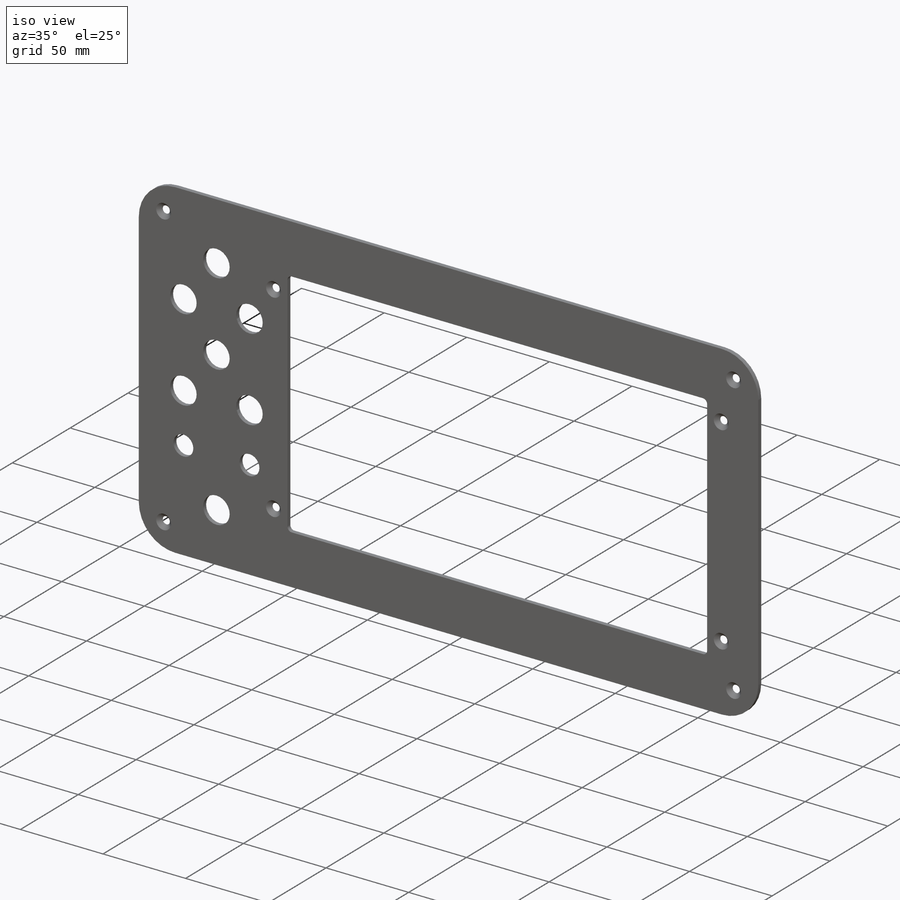
[diagram: iso view]
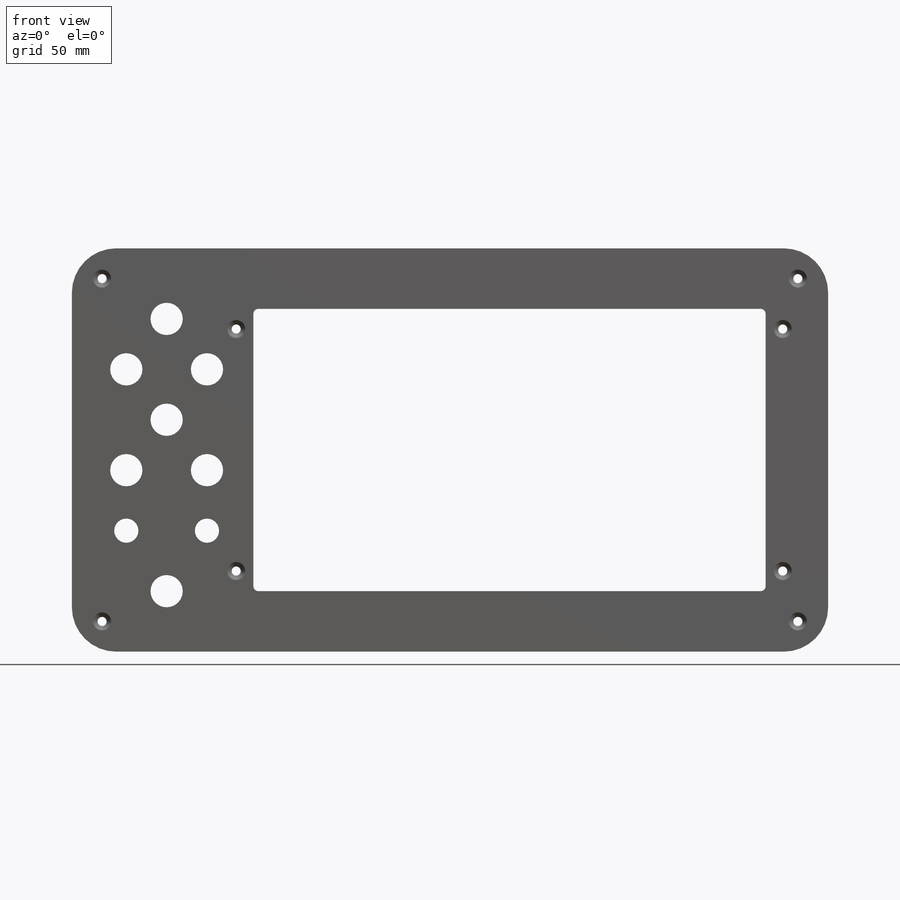
[diagram: front view]
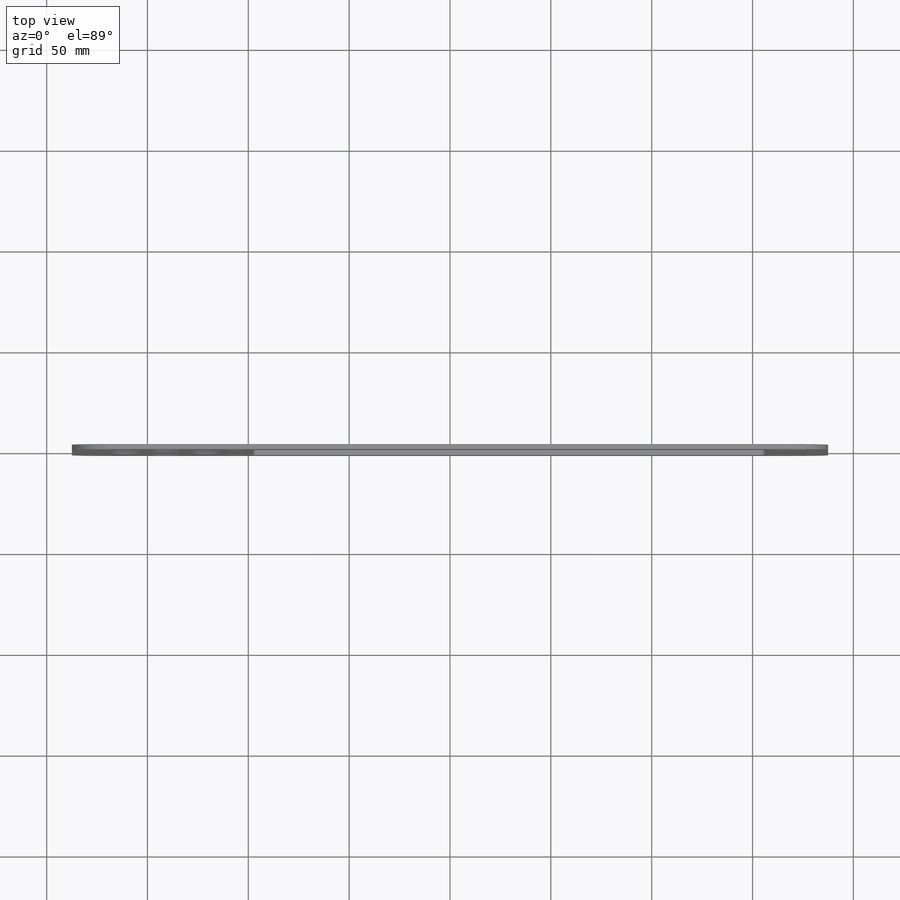
[diagram: top view]
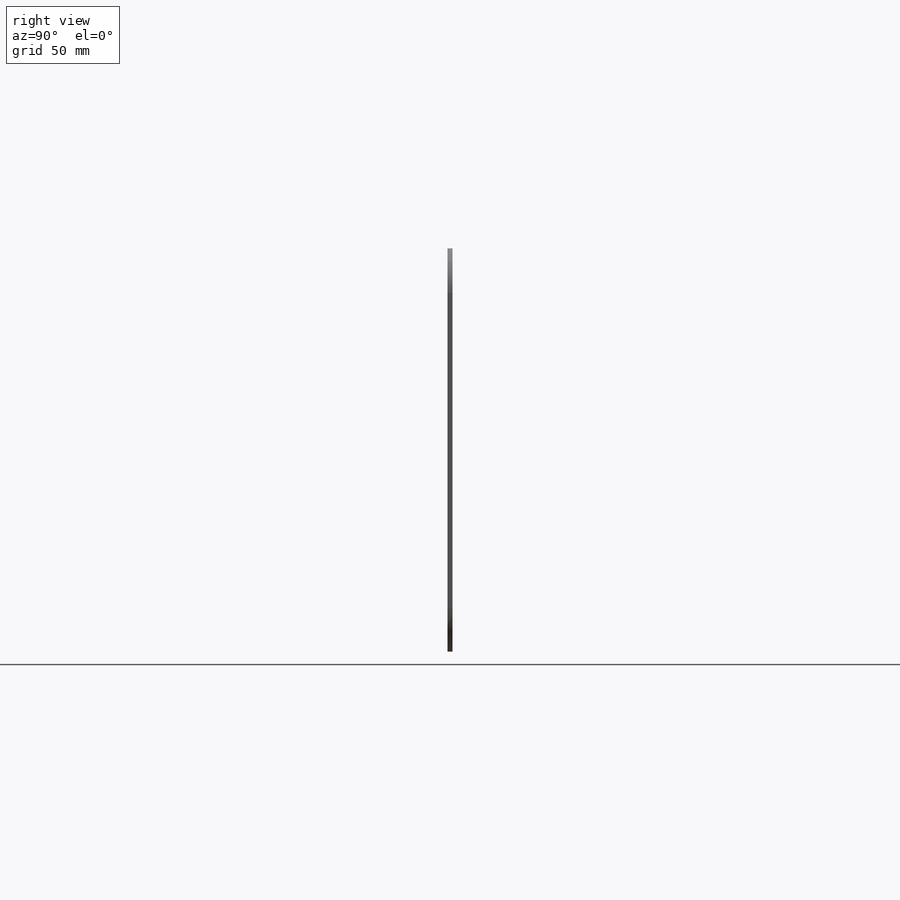
[diagram: right view]
SOLIDWORKS PART (.sldprt)
format: sldprt  version: not decoded by parser v0  size: 409,088 bytes
history: native  units: mm
features: sketch x8, cut_extrude x3, hole x2, mirror x2, material x1, extrude x1 (+12 scaffold rows collapsed)
feature tree (29):
  scaffold x12  (default folders/planes/origin — collapsed)
  material  "7079 Alloy"
  sketch  "Sketch1"  dims[D3=22.0mm D1=375.0mm D2=200.0mm]
  extrude  "Extrude1"  Depth=2.5mm
  sketch  "Sketch5"  dims[c1.D3=2.5mm c1.D1=30.0mm c1.D2=80.0mm c2.D3=17.0mm c2.D4=80.0mm c2.D2=90.0mm c3.D4=31.0mm c3.D5=30.0mm]
  cut_extrude  "Cut-Extrude4"  [1 undecoded]
  hole  "Escareado para parafuso Allen sextavado escareado de M41"  Diameter=4.5mm Depth=2.5mm
  sketch  "Esboço2"  dims[D1=15.0mm D2=15.0mm]
  sketch  "Esboço1"  dims[hole-wizard template sketch: 55 standard entries collapsed; hole parameters kept: c17.Thru Hole Depth=2.5mm c17.Near C'Sink Dia.=8.96mm c17.D4=~3.666174mm c17.Near C'Sink Angle=90.0deg]
  mirror  "Espelhar2"
  mirror  "Espelhar3"
  sketch  "Esboço6"  dims[c1.D1=12.0mm c1.D2=12.0mm c1.D3=16.0mm c1.D4=12.0mm c1.D5=12.0mm c1.D6=12.0mm c1.D7=16.0mm c1.D8=16.0mm c1.D9=16.0mm c1.D10=16.0mm c1.D11=16.0mm c1.D12=16.0mm c1.D13=16.0mm c1.D14=16.0mm c1.D15=16.0mm c1.D16=16.0mm c1.D17=16.0mm c1.D18=16.0mm c1.D19=16.0mm c1.D20=16.0mm c1.D21=16.0mm c1.D22=16.0mm c2.D1=16.0mm c2.D2=16.0mm c2.D3=12.0mm c2.D4=16.0mm c2.D5=16.0mm c2.D6=16.0mm c2.D7=16.0mm c2.D8=16.0mm c3.D4=16.0mm c3.D9=16.0mm c3.D10=16.0mm c3.D11=16.0mm c3.D12=16.0mm c3.D13=16.0mm c3.D15=12.0mm c3.D16=16.0mm c4.D4=20.0mm c4.D5=20.0mm c4.D6=40.0mm c4.D7=50.0mm c4.D9=15.0mm c4.D10=15.0mm c4.D11=30.0mm c4.D13=25.0mm c4.D17=40.0mm c4.D18=20.0mm c4.D19=20.0mm c4.D20=20.0mm c4.D21=21.5mm c4.D22=80.0mm c4.D1=30.0mm c4.D2=43.0mm c4.D3=16.0mm c5.D4=15.0mm c5.D5=25.0mm c5.D6=25.0mm c5.D7=25.0mm c6.D4=30.0mm c6.D8=30.0mm c6.D9=30.0mm c6.D10=5.0mm c6.D11=20.0mm c6.D12=20.0mm c6.D13=20.0mm c6.D14=20.0mm c6.D15=20.0mm c6.D16=16.0mm]
  cut_extrude  "Corte-extrusão1"  Depth=10mm
  sketch  "Esboço7"  dims[c1.D1=2.0mm c1.D3=2.0mm c1.D6=8.96mm c1.D7=2.0mm c1.D8=2.0mm c1.D9=2.0mm c2.D1=8.5mm c2.D2=42.0mm c2.D3=22.5mm c2.D4=120.0mm c2.D5=7.0mm c2.D6=11.0mm c3.D2=10.0mm c3.D3=8.5mm c3.D5=10.0mm c3.D6=25.0mm c3.D7=25.0mm c3.D8=7.5mm c3.D9=7.5mm]
  cut_extrude  "Corte-extrusão2"  [1 undecoded]
  hole  "Escareado para parafuso Allen sextavado escareado de M42"  Diameter=4.5mm Depth=2.5mm
  sketch  "3DSketch4"
  sketch  "Esboço11"  dims[hole-wizard template sketch: 55 standard entries collapsed; hole parameters kept: c17.Thru Hole Depth=2.5mm c17.Near C'Sink Dia.=8.96mm c17.D4=~3.666174mm c17.Near C'Sink Angle=90.0deg]
decode coverage: 11 of 16 modeling features carry decoded parameters
note: ~ marks probable driven/reference dimensions
note: 2 parameter values undecoded
note: suppression state not decoded; provenance and decode notes live in map.json
